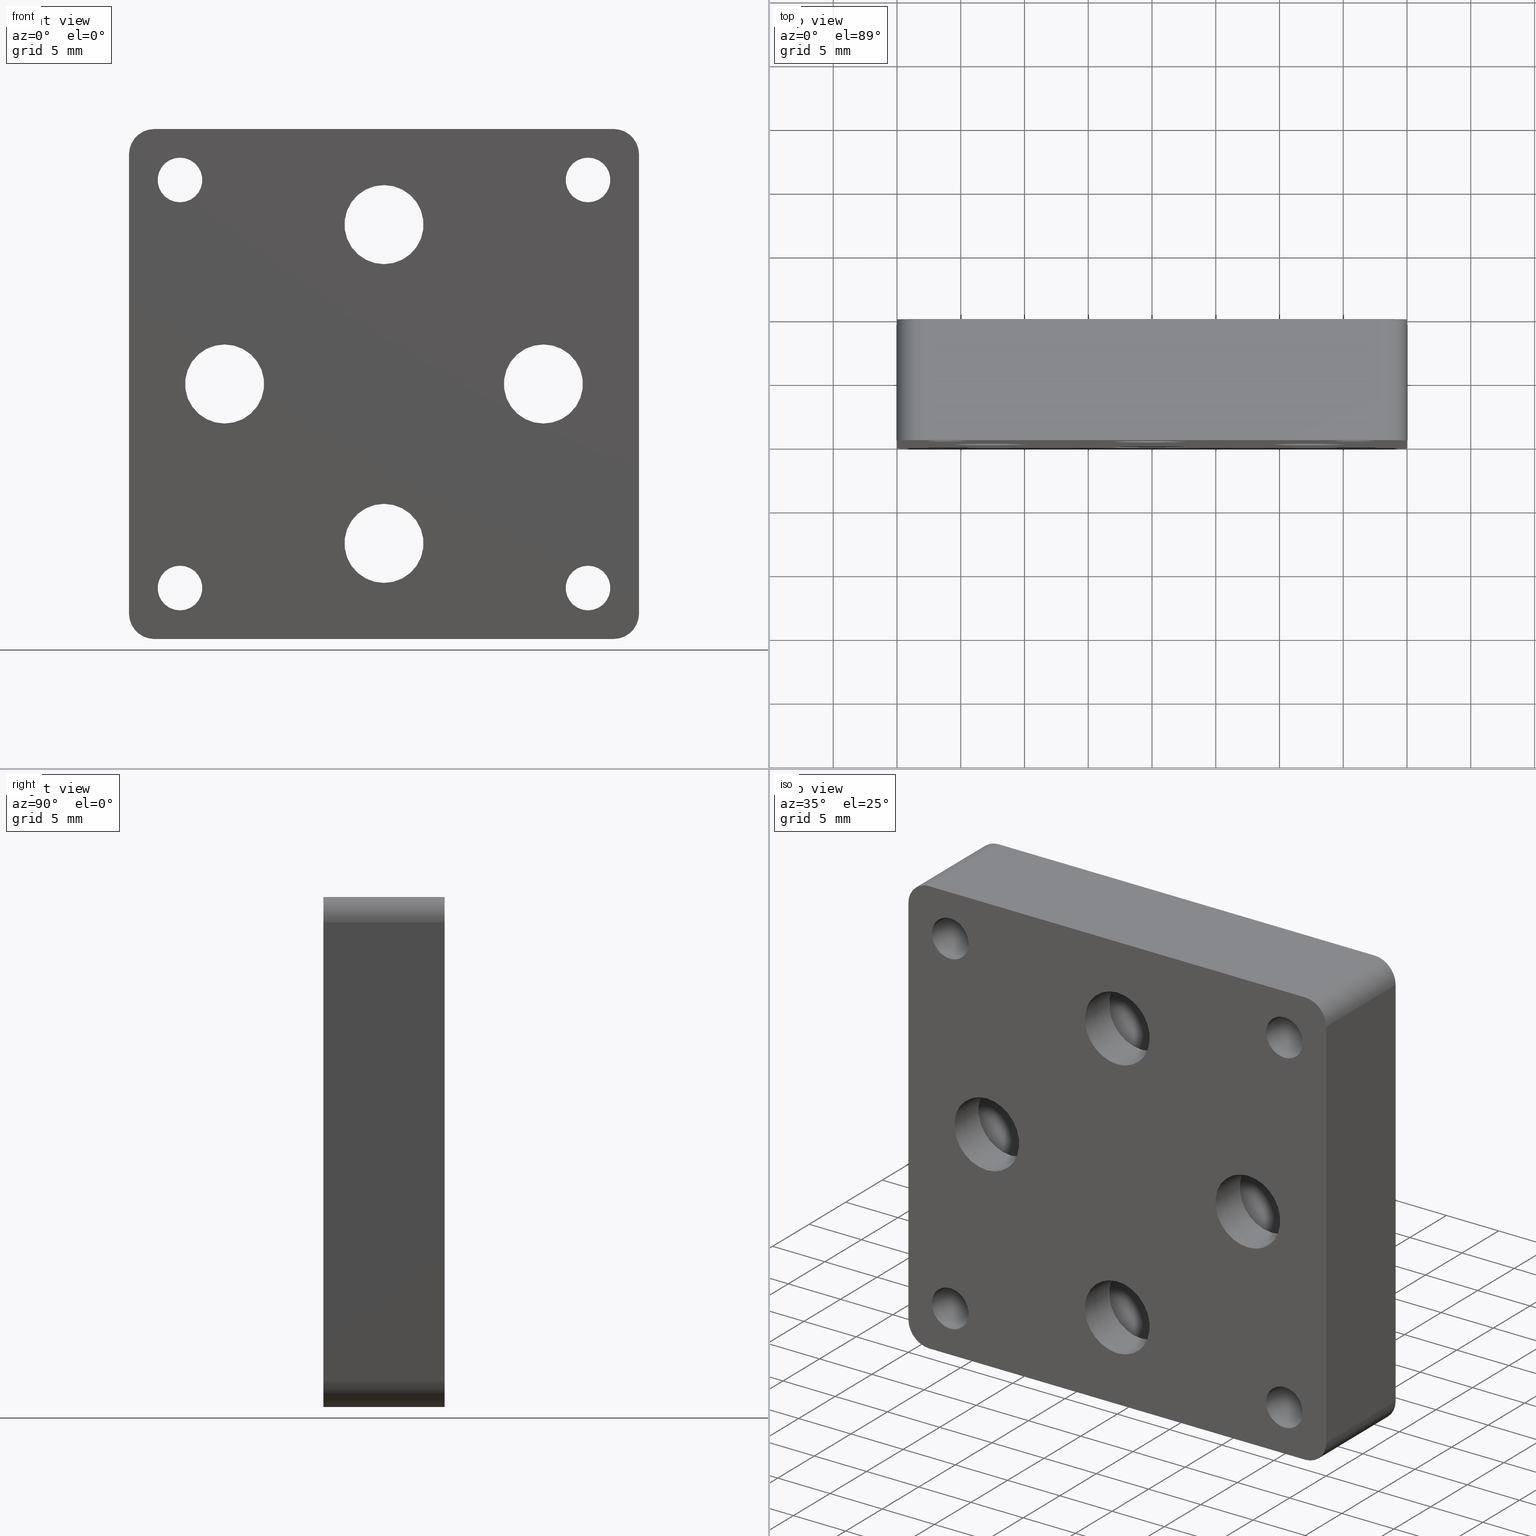
[diagram: canonical four-view strip — front | top / right | iso, engineering-drawing reading convention]
A machine part, canonical four-view strip (front | top / right | iso — engineering-drawing reading convention). The complete STEP part file that produces these views, byte-faithful:
ISO-10303-21;
HEADER;
FILE_DESCRIPTION (( 'STEP AP203' ),
    '1' );
FILE_NAME ('516300ת�Ӱ�.STEP',
    '2022-08-26T09:14:58',
    ( '' ),
    ( '' ),
    'SwSTEP 2.0',
    'SolidWorks 2020',
    '' );
FILE_SCHEMA (( 'CONFIG_CONTROL_DESIGN' ));
ENDSEC;

DATA;
#1 = CARTESIAN_POINT ( 'NONE',  ( -19.99999999999998579, 9.500000000000000000, 18.00000000000000355 ) ) ;
#2 = FACE_BOUND ( 'NONE', #173, .T. ) ;
#3 = CARTESIAN_POINT ( 'NONE',  ( 16.00000000000000000, 0.000000000000000000, -14.25000000000000000 ) ) ;
#4 = EDGE_CURVE ( 'NONE', #119, #119, #726, .T. ) ;
#5 = AXIS2_PLACEMENT_3D ( 'NONE', #140, #394, #321 ) ;
#6 = CARTESIAN_POINT ( 'NONE',  ( -18.00000000000000355, 9.500000000000000000, -19.99999999999998579 ) ) ;
#7 = PLANE ( 'NONE',  #685 ) ;
#8 = AXIS2_PLACEMENT_3D ( 'NONE', #287, #547, #352 ) ;
#9 = VERTEX_POINT ( 'NONE', #383 ) ;
#10 = DIRECTION ( 'NONE',  ( 0.000000000000000000, 1.000000000000000000, 0.000000000000000000 ) ) ;
#11 = DIRECTION ( 'NONE',  ( 0.000000000000000000, -1.000000000000000000, 0.000000000000000000 ) ) ;
#12 =( NAMED_UNIT ( * ) PLANE_ANGLE_UNIT ( ) SI_UNIT ( $, .RADIAN. ) );
#13 = LINE ( 'NONE', #254, #99 ) ;
#14 = ORIENTED_EDGE ( 'NONE', *, *, #250, .T. ) ;
#15 = ADVANCED_FACE ( 'NONE', ( #284, #404 ), #604, .T. ) ;
#16 = CARTESIAN_POINT ( 'NONE',  ( 12.50000000000000178, 9.500000000000000000, -3.061616997868383043E-15 ) ) ;
#17 = APPLICATION_CONTEXT ( 'configuration controlled 3d designs of mechanical parts and assemblies' ) ;
#18 = DATE_AND_TIME ( #633, #425 ) ;
#19 = DIRECTION ( 'NONE',  ( 3.469446951953614682E-16, -0.000000000000000000, 1.000000000000000000 ) ) ;
#20 = EDGE_LOOP ( 'NONE', ( #718 ) ) ;
#21 = AXIS2_PLACEMENT_3D ( 'NONE', #631, #380, #76 ) ;
#22 = DIRECTION ( 'NONE',  ( 0.000000000000000000, -1.000000000000000000, 0.000000000000000000 ) ) ;
#23 = ADVANCED_FACE ( 'NONE', ( #356, #544 ), #229, .T. ) ;
#24 = CARTESIAN_POINT ( 'NONE',  ( 0.000000000000000000, 0.000000000000000000, 0.000000000000000000 ) ) ;
#25 = AXIS2_PLACEMENT_3D ( 'NONE', #557, #748, #488 ) ;
#26 = FACE_BOUND ( 'NONE', #725, .T. ) ;
#27 = CARTESIAN_POINT ( 'NONE',  ( 0.000000000000000000, 3.299999999999999822, -12.50000000000000000 ) ) ;
#28 = DATE_TIME_ROLE ( 'creation_date' ) ;
#29 = DIRECTION ( 'NONE',  ( 0.000000000000000000, 0.000000000000000000, -1.000000000000000000 ) ) ;
#30 = EDGE_LOOP ( 'NONE', ( #732 ) ) ;
#31 = CARTESIAN_POINT ( 'NONE',  ( 12.50000000000000178, 3.299999999999999822, -3.061616997868383043E-15 ) ) ;
#32 = EDGE_CURVE ( 'NONE', #285, #285, #641, .T. ) ;
#33 = DIRECTION ( 'NONE',  ( 0.000000000000000000, 1.000000000000000000, 0.000000000000000000 ) ) ;
#34 = ORIENTED_EDGE ( 'NONE', *, *, #80, .T. ) ;
#35 = DIRECTION ( 'NONE',  ( 0.000000000000000000, 0.000000000000000000, 1.000000000000000000 ) ) ;
#36 = AXIS2_PLACEMENT_3D ( 'NONE', #198, #83, #443 ) ;
#37 = ORIENTED_EDGE ( 'NONE', *, *, #721, .T. ) ;
#38 = AXIS2_PLACEMENT_3D ( 'NONE', #200, #82, #580 ) ;
#39 = EDGE_LOOP ( 'NONE', ( #153 ) ) ;
#40 = DIRECTION ( 'NONE',  ( -0.000000000000000000, 1.000000000000000000, -0.000000000000000000 ) ) ;
#41 = CALENDAR_DATE ( 2022, 26, 8 ) ;
#42 = CYLINDRICAL_SURFACE ( 'NONE', #374, 5.250000000000000000 ) ;
#43 = ORIENTED_EDGE ( 'NONE', *, *, #440, .T. ) ;
#44 = PRODUCT_RELATED_PRODUCT_CATEGORY ( 'detail', '', ( #677 ) ) ;
#45 = CARTESIAN_POINT ( 'NONE',  ( 16.00000000000000000, 9.500000000000000000, -16.00000000000000000 ) ) ;
#46 = ORIENTED_EDGE ( 'NONE', *, *, #778, .T. ) ;
#47 = AXIS2_PLACEMENT_3D ( 'NONE', #271, #644, #781 ) ;
#48 = CIRCLE ( 'NONE', #244, 2.000000000000001776 ) ;
#49 = AXIS2_PLACEMENT_3D ( 'NONE', #341, #256, #270 ) ;
#50 = ORIENTED_EDGE ( 'NONE', *, *, #638, .T. ) ;
#51 = DIRECTION ( 'NONE',  ( 0.000000000000000000, 1.000000000000000000, 0.000000000000000000 ) ) ;
#52 = EDGE_CURVE ( 'NONE', #676, #464, #684, .T. ) ;
#53 = ORIENTED_EDGE ( 'NONE', *, *, #651, .F. ) ;
#54 = DIRECTION ( 'NONE',  ( -0.000000000000000000, 1.000000000000000000, -0.000000000000000000 ) ) ;
#55 = VERTEX_POINT ( 'NONE', #759 ) ;
#56 = EDGE_CURVE ( 'NONE', #55, #645, #48, .T. ) ;
#57 = CARTESIAN_POINT ( 'NONE',  ( -16.00000000000000000, 9.500000000000000000, 16.00000000000000000 ) ) ;
#58 = VERTEX_POINT ( 'NONE', #806 ) ;
#59 = APPROVAL_PERSON_ORGANIZATION ( #593, #769, #788 ) ;
#60 = VECTOR ( 'NONE', #22, 1000.000000000000000 ) ;
#61 = DIRECTION ( 'NONE',  ( 0.000000000000000000, 0.000000000000000000, 1.000000000000000000 ) ) ;
#62 = FACE_BOUND ( 'NONE', #220, .T. ) ;
#63 = VERTEX_POINT ( 'NONE', #445 ) ;
#64 = DIRECTION ( 'NONE',  ( 0.000000000000000000, 0.000000000000000000, -1.000000000000000000 ) ) ;
#65 = CARTESIAN_POINT ( 'NONE',  ( -16.00000000000000000, 9.500000000000000000, -14.25000000000000000 ) ) ;
#66 = DIRECTION ( 'NONE',  ( 0.000000000000000000, 0.000000000000000000, -1.000000000000000000 ) ) ;
#67 = ORIENTED_EDGE ( 'NONE', *, *, #218, .F. ) ;
#68 = DIRECTION ( 'NONE',  ( 0.000000000000000000, -1.000000000000000000, 0.000000000000000000 ) ) ;
#69 = CARTESIAN_POINT ( 'NONE',  ( 0.000000000000000000, 3.299999999999999822, 17.75000000000000355 ) ) ;
#70 = PRODUCT_DEFINITION_FORMATION_WITH_SPECIFIED_SOURCE ( '�κ�', '', #677, .NOT_KNOWN. ) ;
#71 = LINE ( 'NONE', #296, #222 ) ;
#72 = EDGE_LOOP ( 'NONE', ( #793 ) ) ;
#73 = LINE ( 'NONE', #499, #755 ) ;
#74 = VERTEX_POINT ( 'NONE', #69 ) ;
#75 = ADVANCED_FACE ( 'NONE', ( #377 ), #305, .T. ) ;
#76 = DIRECTION ( 'NONE',  ( 0.000000000000000000, 0.000000000000000000, 1.000000000000000000 ) ) ;
#77 = CYLINDRICAL_SURFACE ( 'NONE', #482, 2.000000000000001776 ) ;
#78 = VERTEX_POINT ( 'NONE', #704 ) ;
#79 = FACE_OUTER_BOUND ( 'NONE', #413, .T. ) ;
#80 = EDGE_CURVE ( 'NONE', #333, #459, #550, .T. ) ;
#81 = EDGE_LOOP ( 'NONE', ( #43 ) ) ;
#82 = DIRECTION ( 'NONE',  ( 0.000000000000000000, -1.000000000000000000, 0.000000000000000000 ) ) ;
#83 = DIRECTION ( 'NONE',  ( -0.000000000000000000, 1.000000000000000000, -0.000000000000000000 ) ) ;
#84 = ORIENTED_EDGE ( 'NONE', *, *, #757, .F. ) ;
#85 = LINE ( 'NONE', #516, #160 ) ;
#86 = CIRCLE ( 'NONE', #195, 3.100000000000000533 ) ;
#87 = FACE_OUTER_BOUND ( 'NONE', #525, .T. ) ;
#88 = ORIENTED_EDGE ( 'NONE', *, *, #272, .T. ) ;
#89 = CYLINDRICAL_SURFACE ( 'NONE', #343, 5.249999999999998224 ) ;
#90 = PERSON_AND_ORGANIZATION_ROLE ( 'creator' ) ;
#91 = EDGE_CURVE ( 'NONE', #309, #181, #424, .T. ) ;
#92 = EDGE_LOOP ( 'NONE', ( #157 ) ) ;
#93 = DIRECTION ( 'NONE',  ( -0.000000000000000000, -1.000000000000000000, -0.000000000000000000 ) ) ;
#94 = EDGE_LOOP ( 'NONE', ( #529 ) ) ;
#95 = FACE_BOUND ( 'NONE', #113, .T. ) ;
#96 = DATE_AND_TIME ( #41, #751 ) ;
#97 = CARTESIAN_POINT ( 'NONE',  ( 0.000000000000000000, 3.299999999999999822, -12.50000000000000000 ) ) ;
#98 = CARTESIAN_POINT ( 'NONE',  ( 18.00000000000000711, 9.500000000000000000, 20.00000000000000000 ) ) ;
#99 = VECTOR ( 'NONE', #501, 1000.000000000000000 ) ;
#100 = CIRCLE ( 'NONE', #197, 1.750000000000001554 ) ;
#101 = ORIENTED_EDGE ( 'NONE', *, *, #334, .F. ) ;
#102 = CC_DESIGN_PERSON_AND_ORGANIZATION_ASSIGNMENT ( #700, #138, ( #555 ) ) ;
#103 = VERTEX_POINT ( 'NONE', #746 ) ;
#104 = ORIENTED_EDGE ( 'NONE', *, *, #605, .F. ) ;
#105 = DIRECTION ( 'NONE',  ( 0.000000000000000000, 0.000000000000000000, 1.000000000000000000 ) ) ;
#106 = FACE_OUTER_BOUND ( 'NONE', #298, .T. ) ;
#107 = ORIENTED_EDGE ( 'NONE', *, *, #747, .T. ) ;
#108 = CYLINDRICAL_SURFACE ( 'NONE', #375, 5.250000000000000888 ) ;
#109 = DIRECTION ( 'NONE',  ( 0.000000000000000000, 1.000000000000000000, 0.000000000000000000 ) ) ;
#110 = ADVANCED_FACE ( 'NONE', ( #494, #191 ), #118, .F. ) ;
#111 = ORGANIZATION ( 'δָ��', 'δָ��', '' ) ;
#112 = CIRCLE ( 'NONE', #38, 2.000000000000001776 ) ;
#113 = EDGE_LOOP ( 'NONE', ( #513 ) ) ;
#114 = EDGE_CURVE ( 'NONE', #282, #282, #562, .T. ) ;
#115 = ORIENTED_EDGE ( 'NONE', *, *, #546, .F. ) ;
#116 = ORIENTED_EDGE ( 'NONE', *, *, #114, .F. ) ;
#117 = DIRECTION ( 'NONE',  ( -0.000000000000000000, -1.000000000000000000, -0.000000000000000000 ) ) ;
#118 = CYLINDRICAL_SURFACE ( 'NONE', #627, 1.750000000000001554 ) ;
#119 = VERTEX_POINT ( 'NONE', #363 ) ;
#120 = AXIS2_PLACEMENT_3D ( 'NONE', #239, #156, #717 ) ;
#121 = AXIS2_PLACEMENT_3D ( 'NONE', #295, #51, #293 ) ;
#122 = CIRCLE ( 'NONE', #629, 5.250000000000000888 ) ;
#123 = FACE_OUTER_BOUND ( 'NONE', #355, .T. ) ;
#124 = CC_DESIGN_PERSON_AND_ORGANIZATION_ASSIGNMENT ( #491, #311, ( #677 ) ) ;
#125 = EDGE_LOOP ( 'NONE', ( #406, #385, #541, #659 ) ) ;
#126 = DIRECTION ( 'NONE',  ( -0.000000000000000000, 1.000000000000000000, -0.000000000000000000 ) ) ;
#127 = CARTESIAN_POINT ( 'NONE',  ( -20.00000000000000000, 9.500000000000000000, -17.99999999999998934 ) ) ;
#128 = DIRECTION ( 'NONE',  ( 0.000000000000000000, 0.000000000000000000, 1.000000000000000000 ) ) ;
#129 = DIRECTION ( 'NONE',  ( 0.000000000000000000, 0.000000000000000000, 1.000000000000000000 ) ) ;
#130 = ORIENTED_EDGE ( 'NONE', *, *, #622, .F. ) ;
#131 = DIRECTION ( 'NONE',  ( 0.000000000000000000, 1.000000000000000000, 0.000000000000000000 ) ) ;
#132 = VERTEX_POINT ( 'NONE', #3 ) ;
#133 = ADVANCED_FACE ( 'NONE', ( #618, #2, #561, #754, #421, #242, #620, #437, #182 ), #235, .T. ) ;
#134 = CIRCLE ( 'NONE', #469, 3.100000000000000533 ) ;
#135 = CARTESIAN_POINT ( 'NONE',  ( 16.00000000000000000, 0.000000000000000000, -16.00000000000000000 ) ) ;
#136 = DIRECTION ( 'NONE',  ( 0.000000000000000000, 1.000000000000000000, 0.000000000000000000 ) ) ;
#137 = CIRCLE ( 'NONE', #246, 3.100000000000000533 ) ;
#138 = PERSON_AND_ORGANIZATION_ROLE ( 'creator' ) ;
#139 = EDGE_CURVE ( 'NONE', #459, #502, #73, .T. ) ;
#140 = CARTESIAN_POINT ( 'NONE',  ( -19.99999999999998579, 9.500000000000000000, 20.00000000000000355 ) ) ;
#141 = DIRECTION ( 'NONE',  ( 0.000000000000000000, 1.000000000000000000, 0.000000000000000000 ) ) ;
#142 = DIRECTION ( 'NONE',  ( 0.000000000000000000, 1.000000000000000000, 0.000000000000000000 ) ) ;
#143 = EDGE_LOOP ( 'NONE', ( #37 ) ) ;
#144 = DIRECTION ( 'NONE',  ( 0.000000000000000000, -1.000000000000000000, 0.000000000000000000 ) ) ;
#145 = DIRECTION ( 'NONE',  ( 0.000000000000000000, 0.000000000000000000, -1.000000000000000000 ) ) ;
#146 = ORIENTED_EDGE ( 'NONE', *, *, #169, .T. ) ;
#147 = ADVANCED_FACE ( 'NONE', ( #613 ), #77, .T. ) ;
#148 = DIRECTION ( 'NONE',  ( 0.000000000000000000, -0.000000000000000000, 1.000000000000000000 ) ) ;
#149 = CARTESIAN_POINT ( 'NONE',  ( 0.000000000000000000, 0.000000000000000000, -12.50000000000000000 ) ) ;
#150 = ORIENTED_EDGE ( 'NONE', *, *, #279, .T. ) ;
#151 = DIRECTION ( 'NONE',  ( 3.469446951953614189E-16, -0.000000000000000000, 1.000000000000000000 ) ) ;
#152 = ORIENTED_EDGE ( 'NONE', *, *, #139, .F. ) ;
#153 = ORIENTED_EDGE ( 'NONE', *, *, #457, .F. ) ;
#154 = FACE_OUTER_BOUND ( 'NONE', #294, .T. ) ;
#155 = ADVANCED_FACE ( 'NONE', ( #62, #310 ), #7, .T. ) ;
#156 = DIRECTION ( 'NONE',  ( 0.000000000000000000, -1.000000000000000000, 0.000000000000000000 ) ) ;
#157 = ORIENTED_EDGE ( 'NONE', *, *, #4, .T. ) ;
#158 = LOCAL_TIME ( 17, 14, 58.00000000000000000, #276 ) ;
#159 = ORIENTED_EDGE ( 'NONE', *, *, #297, .T. ) ;
#160 = VECTOR ( 'NONE', #522, 1000.000000000000000 ) ;
#161 = AXIS2_PLACEMENT_3D ( 'NONE', #308, #249, #129 ) ;
#162 = CARTESIAN_POINT ( 'NONE',  ( 0.000000000000000000, 3.299999999999999822, 15.60000000000000142 ) ) ;
#163 = ORIENTED_EDGE ( 'NONE', *, *, #757, .T. ) ;
#164 = DIRECTION ( 'NONE',  ( -1.000000000000000000, -0.000000000000000000, 3.469446951953614189E-16 ) ) ;
#165 = VERTEX_POINT ( 'NONE', #238 ) ;
#166 = FACE_OUTER_BOUND ( 'NONE', #706, .T. ) ;
#167 = EDGE_LOOP ( 'NONE', ( #130 ) ) ;
#168 = EDGE_LOOP ( 'NONE', ( #678, #567, #67, #515 ) ) ;
#169 = EDGE_CURVE ( 'NONE', #722, #722, #768, .T. ) ;
#170 = DIRECTION ( 'NONE',  ( 0.000000000000000000, 1.000000000000000000, 0.000000000000000000 ) ) ;
#171 = AXIS2_PLACEMENT_3D ( 'NONE', #45, #109, #672 ) ;
#172 = AXIS2_PLACEMENT_3D ( 'NONE', #730, #431, #234 ) ;
#173 = EDGE_LOOP ( 'NONE', ( #411 ) ) ;
#174 = DIRECTION ( 'NONE',  ( 0.000000000000000000, -1.000000000000000000, 0.000000000000000000 ) ) ;
#175 = APPROVAL ( #720, 'δָ��' ) ;
#176 = CYLINDRICAL_SURFACE ( 'NONE', #302, 1.750000000000001554 ) ;
#177 = DIRECTION ( 'NONE',  ( 0.000000000000000000, 0.000000000000000000, -1.000000000000000000 ) ) ;
#178 = CIRCLE ( 'NONE', #738, 3.100000000000000533 ) ;
#179 = AXIS2_PLACEMENT_3D ( 'NONE', #458, #462, #274 ) ;
#180 = LINE ( 'NONE', #435, #615 ) ;
#181 = VERTEX_POINT ( 'NONE', #319 ) ;
#182 = FACE_BOUND ( 'NONE', #94, .T. ) ;
#183 = CARTESIAN_POINT ( 'NONE',  ( -12.49999999999999822, 3.299999999999999822, 3.100000000000000533 ) ) ;
#184 = CARTESIAN_POINT ( 'NONE',  ( 18.00000000000000711, 0.000000000000000000, -20.00000000000000000 ) ) ;
#185 = ORIENTED_EDGE ( 'NONE', *, *, #519, .F. ) ;
#186 = ADVANCED_FACE ( 'NONE', ( #749 ), #573, .T. ) ;
#187 = CARTESIAN_POINT ( 'NONE',  ( -19.99999999999998579, 0.000000000000000000, 20.00000000000000355 ) ) ;
#188 = APPROVAL_ROLE ( '' ) ;
#189 = CARTESIAN_POINT ( 'NONE',  ( 20.00000000000000000, 0.000000000000000000, 20.00000000000000000 ) ) ;
#190 = EDGE_LOOP ( 'NONE', ( #210 ) ) ;
#191 = FACE_OUTER_BOUND ( 'NONE', #72, .T. ) ;
#192 = EDGE_CURVE ( 'NONE', #735, #635, #719, .T. ) ;
#193 = CIRCLE ( 'NONE', #120, 2.000000000000001776 ) ;
#194 = CARTESIAN_POINT ( 'NONE',  ( -17.99999999999998934, 9.500000000000000000, 20.00000000000000355 ) ) ;
#195 = AXIS2_PLACEMENT_3D ( 'NONE', #329, #703, #35 ) ;
#196 = DIRECTION ( 'NONE',  ( -0.000000000000000000, 1.000000000000000000, -0.000000000000000000 ) ) ;
#197 = AXIS2_PLACEMENT_3D ( 'NONE', #57, #623, #691 ) ;
#198 = CARTESIAN_POINT ( 'NONE',  ( -18.00000000000000355, 9.500000000000000000, -17.99999999999998934 ) ) ;
#199 = EDGE_LOOP ( 'NONE', ( #470 ) ) ;
#200 = CARTESIAN_POINT ( 'NONE',  ( -17.99999999999998934, 0.000000000000000000, 18.00000000000000355 ) ) ;
#201 = SECURITY_CLASSIFICATION_LEVEL ( 'unclassified' ) ;
#202 = PLANE ( 'NONE',  #5 ) ;
#203 = ORIENTED_EDGE ( 'NONE', *, *, #477, .T. ) ;
#204 = FACE_OUTER_BOUND ( 'NONE', #167, .T. ) ;
#205 = DIRECTION ( 'NONE',  ( 0.000000000000000000, 0.000000000000000000, 1.000000000000000000 ) ) ;
#206 = ORIENTED_EDGE ( 'NONE', *, *, #52, .T. ) ;
#207 = CARTESIAN_POINT ( 'NONE',  ( 18.00000000000000711, 9.500000000000000000, -18.00000000000000355 ) ) ;
#208 = AXIS2_PLACEMENT_3D ( 'NONE', #408, #543, #228 ) ;
#209 = DIRECTION ( 'NONE',  ( -0.000000000000000000, 1.000000000000000000, -0.000000000000000000 ) ) ;
#210 = ORIENTED_EDGE ( 'NONE', *, *, #638, .F. ) ;
#211 = DIRECTION ( 'NONE',  ( 1.000000000000000000, 0.000000000000000000, -3.469446951953614189E-16 ) ) ;
#212 = ADVANCED_FACE ( 'NONE', ( #323 ), #784, .F. ) ;
#213 = ORIENTED_EDGE ( 'NONE', *, *, #4, .F. ) ;
#214 = CARTESIAN_POINT ( 'NONE',  ( 0.000000000000000000, 9.500000000000000000, -12.50000000000000000 ) ) ;
#215 = EDGE_LOOP ( 'NONE', ( #226 ) ) ;
#216 = FACE_OUTER_BOUND ( 'NONE', #39, .T. ) ;
#217 = COORDINATED_UNIVERSAL_TIME_OFFSET ( 8, 0, .AHEAD. ) ;
#218 = EDGE_CURVE ( 'NONE', #645, #493, #779, .T. ) ;
#219 = DIRECTION ( 'NONE',  ( 0.000000000000000000, 1.000000000000000000, 0.000000000000000000 ) ) ;
#220 = EDGE_LOOP ( 'NONE', ( #412 ) ) ;
#221 = VECTOR ( 'NONE', #727, 1000.000000000000000 ) ;
#222 = VECTOR ( 'NONE', #306, 1000.000000000000000 ) ;
#223 = CARTESIAN_POINT ( 'NONE',  ( 16.00000000000000000, 9.500000000000000000, 17.75000000000000355 ) ) ;
#224 = EDGE_LOOP ( 'NONE', ( #84 ) ) ;
#225 = CARTESIAN_POINT ( 'NONE',  ( -16.00000000000000000, 0.000000000000000000, 16.00000000000000000 ) ) ;
#226 = ORIENTED_EDGE ( 'NONE', *, *, #169, .F. ) ;
#227 = EDGE_CURVE ( 'NONE', #645, #309, #85, .T. ) ;
#228 = DIRECTION ( 'NONE',  ( 0.000000000000000000, 0.000000000000000000, 1.000000000000000000 ) ) ;
#229 = PLANE ( 'NONE',  #796 ) ;
#230 = EDGE_LOOP ( 'NONE', ( #241 ) ) ;
#231 = FACE_OUTER_BOUND ( 'NONE', #230, .T. ) ;
#232 = CC_DESIGN_APPROVAL ( #175, ( #441 ) ) ;
#233 = AXIS2_PLACEMENT_3D ( 'NONE', #548, #745, #369 ) ;
#234 = DIRECTION ( 'NONE',  ( 0.000000000000000000, 0.000000000000000000, -1.000000000000000000 ) ) ;
#235 = PLANE ( 'NONE',  #603 ) ;
#236 = EDGE_CURVE ( 'NONE', #181, #493, #337, .T. ) ;
#237 = LINE ( 'NONE', #127, #472 ) ;
#238 = CARTESIAN_POINT ( 'NONE',  ( -20.00000000000000000, 9.500000000000000000, -17.99999999999998934 ) ) ;
#239 = CARTESIAN_POINT ( 'NONE',  ( 18.00000000000000711, 0.000000000000000000, -18.00000000000000355 ) ) ;
#240 = CARTESIAN_POINT ( 'NONE',  ( -18.00000000000000355, 0.000000000000000000, -19.99999999999998579 ) ) ;
#241 = ORIENTED_EDGE ( 'NONE', *, *, #379, .F. ) ;
#242 = FACE_BOUND ( 'NONE', #20, .T. ) ;
#243 = CIRCLE ( 'NONE', #340, 1.999999999999998224 ) ;
#244 = AXIS2_PLACEMENT_3D ( 'NONE', #248, #126, #64 ) ;
#245 = ADVANCED_FACE ( 'NONE', ( #654 ), #396, .F. ) ;
#246 = AXIS2_PLACEMENT_3D ( 'NONE', #773, #449, #707 ) ;
#247 = LINE ( 'NONE', #189, #729 ) ;
#248 = CARTESIAN_POINT ( 'NONE',  ( -17.99999999999998934, 9.500000000000000000, 18.00000000000000355 ) ) ;
#249 = DIRECTION ( 'NONE',  ( 0.000000000000000000, 1.000000000000000000, 0.000000000000000000 ) ) ;
#250 = EDGE_CURVE ( 'NONE', #418, #676, #492, .T. ) ;
#251 = ORIENTED_EDGE ( 'NONE', *, *, #481, .F. ) ;
#252 = CARTESIAN_POINT ( 'NONE',  ( 16.00000000000000000, 9.500000000000000000, -16.00000000000000000 ) ) ;
#253 = PERSON_AND_ORGANIZATION ( #744, #111 ) ;
#254 = CARTESIAN_POINT ( 'NONE',  ( 20.00000000000000000, 9.500000000000000000, -18.00000000000000711 ) ) ;
#255 = ORIENTED_EDGE ( 'NONE', *, *, #279, .F. ) ;
#256 = DIRECTION ( 'NONE',  ( 0.000000000000000000, 1.000000000000000000, 0.000000000000000000 ) ) ;
#257 = DIRECTION ( 'NONE',  ( 0.000000000000000000, 0.000000000000000000, 1.000000000000000000 ) ) ;
#258 = LOCAL_TIME ( 17, 14, 58.00000000000000000, #434 ) ;
#259 = FACE_BOUND ( 'NONE', #667, .T. ) ;
#260 = EDGE_LOOP ( 'NONE', ( #465 ) ) ;
#261 = DIRECTION ( 'NONE',  ( 0.000000000000000000, 0.000000000000000000, 1.000000000000000000 ) ) ;
#262 = CALENDAR_DATE ( 2022, 26, 8 ) ;
#263 = EDGE_CURVE ( 'NONE', #537, #537, #86, .T. ) ;
#264 = APPLICATION_CONTEXT ( 'configuration controlled 3d designs of mechanical parts and assemblies' ) ;
#265 = FACE_BOUND ( 'NONE', #451, .T. ) ;
#266 = DIRECTION ( 'NONE',  ( 1.000000000000000000, 0.000000000000000000, -3.469446951953614682E-16 ) ) ;
#267 = APPROVAL_ROLE ( '' ) ;
#268 = DIRECTION ( 'NONE',  ( -0.000000000000000000, -1.000000000000000000, -0.000000000000000000 ) ) ;
#269 = ORIENTED_EDGE ( 'NONE', *, *, #733, .F. ) ;
#270 = DIRECTION ( 'NONE',  ( 0.000000000000000000, 0.000000000000000000, 1.000000000000000000 ) ) ;
#271 = CARTESIAN_POINT ( 'NONE',  ( 12.50000000000000178, 0.000000000000000000, -3.061616997868383043E-15 ) ) ;
#272 = EDGE_CURVE ( 'NONE', #790, #790, #657, .T. ) ;
#273 = CIRCLE ( 'NONE', #673, 3.100000000000000533 ) ;
#274 = DIRECTION ( 'NONE',  ( 0.000000000000000000, 0.000000000000000000, 1.000000000000000000 ) ) ;
#275 = AXIS2_PLACEMENT_3D ( 'NONE', #687, #553, #420 ) ;
#276 = COORDINATED_UNIVERSAL_TIME_OFFSET ( 8, 0, .AHEAD. ) ;
#277 = LINE ( 'NONE', #422, #480 ) ;
#278 = ORIENTED_EDGE ( 'NONE', *, *, #481, .T. ) ;
#279 = EDGE_CURVE ( 'NONE', #103, #103, #507, .T. ) ;
#280 = DIRECTION ( 'NONE',  ( 0.000000000000000000, 0.000000000000000000, 1.000000000000000000 ) ) ;
#281 = PERSON_AND_ORGANIZATION ( #744, #111 ) ;
#282 = VERTEX_POINT ( 'NONE', #786 ) ;
#283 = ORIENTED_EDGE ( 'NONE', *, *, #795, .F. ) ;
#284 = FACE_BOUND ( 'NONE', #653, .T. ) ;
#285 = VERTEX_POINT ( 'NONE', #598 ) ;
#286 = ORIENTED_EDGE ( 'NONE', *, *, #263, .T. ) ;
#287 = CARTESIAN_POINT ( 'NONE',  ( -12.49999999999999822, 3.299999999999999822, 0.000000000000000000 ) ) ;
#288 = AXIS2_PLACEMENT_3D ( 'NONE', #652, #658, #473 ) ;
#289 = AXIS2_PLACEMENT_3D ( 'NONE', #483, #144, #386 ) ;
#290 = ADVANCED_FACE ( 'NONE', ( #95, #382 ), #714, .T. ) ;
#291 = ORIENTED_EDGE ( 'NONE', *, *, #546, .T. ) ;
#292 = DIRECTION ( 'NONE',  ( 0.000000000000000000, 0.000000000000000000, 1.000000000000000000 ) ) ;
#293 = DIRECTION ( 'NONE',  ( 0.000000000000000000, -0.000000000000000000, 1.000000000000000000 ) ) ;
#294 = EDGE_LOOP ( 'NONE', ( #315 ) ) ;
#295 = CARTESIAN_POINT ( 'NONE',  ( -12.49999999999999822, 3.299999999999999822, 0.000000000000000000 ) ) ;
#296 = CARTESIAN_POINT ( 'NONE',  ( -20.00000000000000000, 0.000000000000000000, -19.99999999999998579 ) ) ;
#297 = EDGE_CURVE ( 'NONE', #309, #327, #112, .T. ) ;
#298 = EDGE_LOOP ( 'NONE', ( #116 ) ) ;
#299 = AXIS2_PLACEMENT_3D ( 'NONE', #214, #219, #552 ) ;
#300 = DIRECTION ( 'NONE',  ( -0.000000000000000000, 1.000000000000000000, -0.000000000000000000 ) ) ;
#301 = AXIS2_PLACEMENT_3D ( 'NONE', #207, #776, #444 ) ;
#302 = AXIS2_PLACEMENT_3D ( 'NONE', #560, #117, #66 ) ;
#303 = FACE_OUTER_BOUND ( 'NONE', #403, .T. ) ;
#304 = ADVANCED_FACE ( 'NONE', ( #204, #154 ), #452, .F. ) ;
#305 = CYLINDRICAL_SURFACE ( 'NONE', #454, 2.000000000000001776 ) ;
#306 = DIRECTION ( 'NONE',  ( -1.000000000000000000, -0.000000000000000000, 3.469446951953614189E-16 ) ) ;
#307 = CARTESIAN_POINT ( 'NONE',  ( -18.00000000000000355, 0.000000000000000000, -17.99999999999998934 ) ) ;
#308 = CARTESIAN_POINT ( 'NONE',  ( 0.000000000000000000, 9.500000000000000000, 12.50000000000000000 ) ) ;
#309 = VERTEX_POINT ( 'NONE', #649 ) ;
#310 = FACE_OUTER_BOUND ( 'NONE', #30, .T. ) ;
#311 = PERSON_AND_ORGANIZATION_ROLE ( 'design_owner' ) ;
#312 = APPROVAL_PERSON_ORGANIZATION ( #253, #530, #188 ) ;
#313 = EDGE_CURVE ( 'NONE', #797, #797, #614, .T. ) ;
#314 = AXIS2_PLACEMENT_3D ( 'NONE', #511, #636, #148 ) ;
#315 = ORIENTED_EDGE ( 'NONE', *, *, #334, .T. ) ;
#316 = DIRECTION ( 'NONE',  ( 0.000000000000000000, 0.000000000000000000, -1.000000000000000000 ) ) ;
#317 = VERTEX_POINT ( 'NONE', #324 ) ;
#318 = DIRECTION ( 'NONE',  ( 0.000000000000000000, -1.000000000000000000, 0.000000000000000000 ) ) ;
#319 = CARTESIAN_POINT ( 'NONE',  ( 18.00000000000000711, 0.000000000000000000, 20.00000000000000000 ) ) ;
#320 =( LENGTH_UNIT ( ) NAMED_UNIT ( * ) SI_UNIT ( .MILLI., .METRE. ) );
#321 = DIRECTION ( 'NONE',  ( -1.000000000000000000, 0.000000000000000000, 8.673617379884039170E-17 ) ) ;
#322 = CC_DESIGN_PERSON_AND_ORGANIZATION_ASSIGNMENT ( #466, #397, ( #70 ) ) ;
#323 = FACE_OUTER_BOUND ( 'NONE', #600, .T. ) ;
#324 = CARTESIAN_POINT ( 'NONE',  ( -12.49999999999999822, 9.500000000000000000, 5.250000000000000000 ) ) ;
#325 = CIRCLE ( 'NONE', #288, 1.999999999999998224 ) ;
#326 = FACE_BOUND ( 'NONE', #224, .T. ) ;
#327 = VERTEX_POINT ( 'NONE', #503 ) ;
#328 = AXIS2_PLACEMENT_3D ( 'NONE', #588, #266, #527 ) ;
#329 = CARTESIAN_POINT ( 'NONE',  ( 0.000000000000000000, 3.299999999999999822, 12.50000000000000000 ) ) ;
#330 = FACE_OUTER_BOUND ( 'NONE', #215, .T. ) ;
#331 = EDGE_LOOP ( 'NONE', ( #50 ) ) ;
#332 = DIRECTION ( 'NONE',  ( 1.000000000000000000, 0.000000000000000000, -8.673617379884037937E-17 ) ) ;
#333 = VERTEX_POINT ( 'NONE', #767 ) ;
#334 = EDGE_CURVE ( 'NONE', #410, #410, #137, .T. ) ;
#335 = FACE_BOUND ( 'NONE', #775, .T. ) ;
#336 = ORIENTED_EDGE ( 'NONE', *, *, #379, .T. ) ;
#337 = LINE ( 'NONE', #98, #592 ) ;
#338 = CARTESIAN_POINT ( 'NONE',  ( -19.99999999999998579, 9.500000000000000000, 20.00000000000000355 ) ) ;
#339 = ORIENTED_EDGE ( 'NONE', *, *, #236, .F. ) ;
#340 = AXIS2_PLACEMENT_3D ( 'NONE', #450, #209, #771 ) ;
#341 = CARTESIAN_POINT ( 'NONE',  ( 16.00000000000000000, 9.500000000000000000, 16.00000000000000000 ) ) ;
#342 = VECTOR ( 'NONE', #489, 1000.000000000000000 ) ;
#343 = AXIS2_PLACEMENT_3D ( 'NONE', #31, #40, #670 ) ;
#344 = DIRECTION ( 'NONE',  ( 0.000000000000000000, 0.000000000000000000, 1.000000000000000000 ) ) ;
#345 = ORIENTED_EDGE ( 'NONE', *, *, #446, .F. ) ;
#346 = ORIENTED_EDGE ( 'NONE', *, *, #56, .T. ) ;
#347 = APPROVAL_STATUS ( 'not_yet_approved' ) ;
#348 = ORIENTED_EDGE ( 'NONE', *, *, #313, .F. ) ;
#349 = CC_DESIGN_PERSON_AND_ORGANIZATION_ASSIGNMENT ( #663, #512, ( #441 ) ) ;
#350 = ORIENTED_EDGE ( 'NONE', *, *, #467, .F. ) ;
#351 = EDGE_LOOP ( 'NONE', ( #782 ) ) ;
#352 = DIRECTION ( 'NONE',  ( 0.000000000000000000, 0.000000000000000000, 1.000000000000000000 ) ) ;
#353 = CC_DESIGN_SECURITY_CLASSIFICATION ( #441, ( #70 ) ) ;
#354 = AXIS2_PLACEMENT_3D ( 'NONE', #307, #174, #177 ) ;
#355 = EDGE_LOOP ( 'NONE', ( #88 ) ) ;
#356 = FACE_BOUND ( 'NONE', #518, .T. ) ;
#357 = ADVANCED_FACE ( 'NONE', ( #584, #646 ), #89, .F. ) ;
#358 = CARTESIAN_POINT ( 'NONE',  ( 0.000000000000000000, 9.500000000000000000, -12.50000000000000000 ) ) ;
#359 = ADVANCED_FACE ( 'NONE', ( #216, #166 ), #108, .F. ) ;
#360 = DIRECTION ( 'NONE',  ( 0.000000000000000000, 0.000000000000000000, -1.000000000000000000 ) ) ;
#361 = CARTESIAN_POINT ( 'NONE',  ( 0.000000000000000000, 3.299999999999999822, -12.50000000000000000 ) ) ;
#362 = AXIS2_PLACEMENT_3D ( 'NONE', #135, #142, #570 ) ;
#363 = CARTESIAN_POINT ( 'NONE',  ( 16.00000000000000000, 9.500000000000000000, -14.25000000000000000 ) ) ;
#364 = CIRCLE ( 'NONE', #8, 5.250000000000000000 ) ;
#365 = CYLINDRICAL_SURFACE ( 'NONE', #609, 3.100000000000000533 ) ;
#366 = DIRECTION ( 'NONE',  ( 0.000000000000000000, 0.000000000000000000, -1.000000000000000000 ) ) ;
#367 = APPLICATION_PROTOCOL_DEFINITION ( 'international standard', 'config_control_design', 1994, #17 ) ;
#368 = CARTESIAN_POINT ( 'NONE',  ( 12.50000000000000178, 3.299999999999999822, -3.061616997868383043E-15 ) ) ;
#369 = DIRECTION ( 'NONE',  ( 0.000000000000000000, 0.000000000000000000, 1.000000000000000000 ) ) ;
#370 = EDGE_CURVE ( 'NONE', #668, #668, #711, .T. ) ;
#371 = FACE_OUTER_BOUND ( 'NONE', #395, .T. ) ;
#372 = DIRECTION ( 'NONE',  ( 0.000000000000000000, 0.000000000000000000, 1.000000000000000000 ) ) ;
#373 = VERTEX_POINT ( 'NONE', #750 ) ;
#374 = AXIS2_PLACEMENT_3D ( 'NONE', #97, #300, #809 ) ;
#375 = AXIS2_PLACEMENT_3D ( 'NONE', #414, #607, #105 ) ;
#376 = CYLINDRICAL_SURFACE ( 'NONE', #387, 1.749999999999999778 ) ;
#377 = FACE_OUTER_BOUND ( 'NONE', #125, .T. ) ;
#378 = COORDINATED_UNIVERSAL_TIME_OFFSET ( 8, 0, .AHEAD. ) ;
#379 = EDGE_CURVE ( 'NONE', #58, #58, #364, .T. ) ;
#380 = DIRECTION ( 'NONE',  ( 0.000000000000000000, 1.000000000000000000, 0.000000000000000000 ) ) ;
#381 = ORIENTED_EDGE ( 'NONE', *, *, #671, .T. ) ;
#382 = FACE_OUTER_BOUND ( 'NONE', #475, .T. ) ;
#383 = CARTESIAN_POINT ( 'NONE',  ( 0.000000000000000000, 0.000000000000000000, -9.400000000000000355 ) ) ;
#384 = DIRECTION ( 'NONE',  ( -0.000000000000000000, -1.000000000000000000, -0.000000000000000000 ) ) ;
#385 = ORIENTED_EDGE ( 'NONE', *, *, #671, .F. ) ;
#386 = DIRECTION ( 'NONE',  ( 0.000000000000000000, 0.000000000000000000, -1.000000000000000000 ) ) ;
#387 = AXIS2_PLACEMENT_3D ( 'NONE', #705, #93, #637 ) ;
#388 = VECTOR ( 'NONE', #11, 1000.000000000000000 ) ;
#389 = CARTESIAN_POINT ( 'NONE',  ( 0.000000000000000000, 0.000000000000000000, 12.50000000000000000 ) ) ;
#390 = EDGE_LOOP ( 'NONE', ( #542, #381, #115, #590 ) ) ;
#391 = AXIS2_PLACEMENT_3D ( 'NONE', #392, #151, #211 ) ;
#392 = CARTESIAN_POINT ( 'NONE',  ( -20.00000000000000000, 9.500000000000000000, -19.99999999999998579 ) ) ;
#393 = DATE_TIME_ROLE ( 'classification_date' ) ;
#394 = DIRECTION ( 'NONE',  ( -8.673617379884039170E-17, 0.000000000000000000, -1.000000000000000000 ) ) ;
#395 = EDGE_LOOP ( 'NONE', ( #53, #339, #716, #758 ) ) ;
#396 = PLANE ( 'NONE',  #328 ) ;
#397 = PERSON_AND_ORGANIZATION_ROLE ( 'design_supplier' ) ;
#398 = EDGE_CURVE ( 'NONE', #63, #63, #741, .T. ) ;
#399 = CARTESIAN_POINT ( 'NONE',  ( 20.00000000000000000, 9.500000000000000000, 20.00000000000000000 ) ) ;
#400 = DIRECTION ( 'NONE',  ( 0.000000000000000000, 0.000000000000000000, -1.000000000000000000 ) ) ;
#401 = APPROVAL_DATE_TIME ( #517, #769 ) ;
#402 =( GEOMETRIC_REPRESENTATION_CONTEXT ( 3 ) GLOBAL_UNCERTAINTY_ASSIGNED_CONTEXT ( ( #536 ) ) GLOBAL_UNIT_ASSIGNED_CONTEXT ( ( #320, #12, #506 ) ) REPRESENTATION_CONTEXT ( 'NONE', 'WORKASPACE' ) );
#403 = EDGE_LOOP ( 'NONE', ( #255 ) ) ;
#404 = FACE_OUTER_BOUND ( 'NONE', #432, .T. ) ;
#405 = CARTESIAN_POINT ( 'NONE',  ( 0.000000000000000000, 3.299999999999999822, -9.400000000000000355 ) ) ;
#406 = ORIENTED_EDGE ( 'NONE', *, *, #250, .F. ) ;
#407 = CC_DESIGN_DATE_AND_TIME_ASSIGNMENT ( #785, #393, ( #441 ) ) ;
#408 = CARTESIAN_POINT ( 'NONE',  ( 12.50000000000000178, 9.500000000000000000, -3.061616997868383043E-15 ) ) ;
#409 = MANIFOLD_SOLID_BREP ( '�г�-����1', #612 ) ;
#410 = VERTEX_POINT ( 'NONE', #616 ) ;
#411 = ORIENTED_EDGE ( 'NONE', *, *, #370, .T. ) ;
#412 = ORIENTED_EDGE ( 'NONE', *, *, #263, .F. ) ;
#413 = EDGE_LOOP ( 'NONE', ( #286 ) ) ;
#414 = CARTESIAN_POINT ( 'NONE',  ( 0.000000000000000000, 3.299999999999999822, 12.50000000000000000 ) ) ;
#415 = VECTOR ( 'NONE', #19, 1000.000000000000000 ) ;
#416 = DIRECTION ( 'NONE',  ( 0.000000000000000000, -0.000000000000000000, 1.000000000000000000 ) ) ;
#417 = ADVANCED_FACE ( 'NONE', ( #231, #476 ), #736, .F. ) ;
#418 = VERTEX_POINT ( 'NONE', #479 ) ;
#419 = ADVANCED_FACE ( 'NONE', ( #740, #792 ), #471, .F. ) ;
#420 = DIRECTION ( 'NONE',  ( 0.000000000000000000, 0.000000000000000000, 1.000000000000000000 ) ) ;
#421 = FACE_OUTER_BOUND ( 'NONE', #669, .T. ) ;
#422 = CARTESIAN_POINT ( 'NONE',  ( -20.00000000000000000, 9.500000000000000000, -19.99999999999998579 ) ) ;
#423 = CYLINDRICAL_SURFACE ( 'NONE', #25, 3.100000000000000533 ) ;
#424 = LINE ( 'NONE', #187, #342 ) ;
#425 = LOCAL_TIME ( 17, 14, 58.00000000000000000, #378 ) ;
#426 = MECHANICAL_CONTEXT ( 'NONE', #17, 'mechanical' ) ;
#427 = FACE_OUTER_BOUND ( 'NONE', #81, .T. ) ;
#428 = CC_DESIGN_DATE_AND_TIME_ASSIGNMENT ( #18, #28, ( #555 ) ) ;
#429 = CARTESIAN_POINT ( 'NONE',  ( 0.000000000000000000, 0.000000000000000000, 0.000000000000000000 ) ) ;
#430 = CARTESIAN_POINT ( 'NONE',  ( -16.00000000000000000, 9.500000000000000000, 17.75000000000000355 ) ) ;
#431 = DIRECTION ( 'NONE',  ( -0.000000000000000000, -1.000000000000000000, -0.000000000000000000 ) ) ;
#432 = EDGE_LOOP ( 'NONE', ( #336 ) ) ;
#433 = DIRECTION ( 'NONE',  ( 0.000000000000000000, -0.000000000000000000, 1.000000000000000000 ) ) ;
#434 = COORDINATED_UNIVERSAL_TIME_OFFSET ( 8, 0, .AHEAD. ) ;
#435 = CARTESIAN_POINT ( 'NONE',  ( 20.00000000000000000, 9.500000000000000000, 20.00000000000000000 ) ) ;
#436 = ORIENTED_EDGE ( 'NONE', *, *, #477, .F. ) ;
#437 = FACE_BOUND ( 'NONE', #143, .T. ) ;
#438 = CIRCLE ( 'NONE', #21, 5.250000000000000000 ) ;
#439 = APPLICATION_PROTOCOL_DEFINITION ( 'international standard', 'config_control_design', 1994, #264 ) ;
#440 = EDGE_CURVE ( 'NONE', #628, #628, #804, .T. ) ;
#441 = SECURITY_CLASSIFICATION ( '', '', #201 ) ;
#442 = AXIS2_PLACEMENT_3D ( 'NONE', #485, #131, #372 ) ;
#443 = DIRECTION ( 'NONE',  ( 0.000000000000000000, 0.000000000000000000, -1.000000000000000000 ) ) ;
#444 = DIRECTION ( 'NONE',  ( 0.000000000000000000, 0.000000000000000000, -1.000000000000000000 ) ) ;
#445 = CARTESIAN_POINT ( 'NONE',  ( 12.50000000000000178, 9.500000000000000000, 5.249999999999995559 ) ) ;
#446 = EDGE_CURVE ( 'NONE', #327, #55, #680, .T. ) ;
#447 = FACE_BOUND ( 'NONE', #624, .T. ) ;
#448 = EDGE_LOOP ( 'NONE', ( #203 ) ) ;
#449 = DIRECTION ( 'NONE',  ( 0.000000000000000000, 1.000000000000000000, 0.000000000000000000 ) ) ;
#450 = CARTESIAN_POINT ( 'NONE',  ( 18.00000000000000355, 9.500000000000000000, 18.00000000000000000 ) ) ;
#451 = EDGE_LOOP ( 'NONE', ( #762 ) ) ;
#452 = CYLINDRICAL_SURFACE ( 'NONE', #564, 3.100000000000000533 ) ;
#453 = SHAPE_DEFINITION_REPRESENTATION ( #731, #534 ) ;
#454 = AXIS2_PLACEMENT_3D ( 'NONE', #554, #558, #625 ) ;
#455 = PLANE ( 'NONE',  #802 ) ;
#456 = ORIENTED_EDGE ( 'NONE', *, *, #398, .T. ) ;
#457 = EDGE_CURVE ( 'NONE', #74, #74, #122, .T. ) ;
#458 = CARTESIAN_POINT ( 'NONE',  ( -12.49999999999999822, 0.000000000000000000, 0.000000000000000000 ) ) ;
#459 = VERTEX_POINT ( 'NONE', #240 ) ;
#460 = CARTESIAN_POINT ( 'NONE',  ( 20.00000000000000000, 0.000000000000000000, 18.00000000000000000 ) ) ;
#461 = ORIENTED_EDGE ( 'NONE', *, *, #795, .T. ) ;
#462 = DIRECTION ( 'NONE',  ( 0.000000000000000000, 1.000000000000000000, 0.000000000000000000 ) ) ;
#463 = DIRECTION ( 'NONE',  ( -1.000000000000000000, 0.000000000000000000, 0.000000000000000000 ) ) ;
#464 = VERTEX_POINT ( 'NONE', #184 ) ;
#465 = ORIENTED_EDGE ( 'NONE', *, *, #721, .F. ) ;
#466 = PERSON_AND_ORGANIZATION ( #744, #111 ) ;
#467 = EDGE_CURVE ( 'NONE', #686, #686, #100, .T. ) ;
#468 = PLANE ( 'NONE',  #682 ) ;
#469 = AXIS2_PLACEMENT_3D ( 'NONE', #149, #33, #205 ) ;
#470 = ORIENTED_EDGE ( 'NONE', *, *, #498, .F. ) ;
#471 = CYLINDRICAL_SURFACE ( 'NONE', #172, 1.749999999999999778 ) ;
#472 = VECTOR ( 'NONE', #756, 1000.000000000000000 ) ;
#473 = DIRECTION ( 'NONE',  ( 0.000000000000000000, 0.000000000000000000, -1.000000000000000000 ) ) ;
#474 = VERTEX_POINT ( 'NONE', #610 ) ;
#475 = EDGE_LOOP ( 'NONE', ( #539 ) ) ;
#476 = FACE_OUTER_BOUND ( 'NONE', #331, .T. ) ;
#477 = EDGE_CURVE ( 'NONE', #563, #563, #660, .T. ) ;
#478 = ORIENTED_EDGE ( 'NONE', *, *, #733, .T. ) ;
#479 = CARTESIAN_POINT ( 'NONE',  ( 20.00000000000000000, 9.500000000000000000, -18.00000000000000711 ) ) ;
#480 = VECTOR ( 'NONE', #164, 1000.000000000000000 ) ;
#481 = EDGE_CURVE ( 'NONE', #464, #459, #71, .T. ) ;
#482 = AXIS2_PLACEMENT_3D ( 'NONE', #693, #808, #316 ) ;
#483 = CARTESIAN_POINT ( 'NONE',  ( -17.99999999999998934, 9.500000000000000000, 18.00000000000000355 ) ) ;
#484 = FACE_OUTER_BOUND ( 'NONE', #662, .T. ) ;
#485 = CARTESIAN_POINT ( 'NONE',  ( 16.00000000000000000, 0.000000000000000000, 16.00000000000000000 ) ) ;
#486 = VERTEX_POINT ( 'NONE', #621 ) ;
#487 = ADVANCED_FACE ( 'NONE', ( #427, #549 ), #176, .F. ) ;
#488 = DIRECTION ( 'NONE',  ( 0.000000000000000000, 0.000000000000000000, -1.000000000000000000 ) ) ;
#489 = DIRECTION ( 'NONE',  ( 1.000000000000000000, 0.000000000000000000, -8.673617379884037937E-17 ) ) ;
#490 = CIRCLE ( 'NONE', #47, 3.100000000000000533 ) ;
#491 = PERSON_AND_ORGANIZATION ( #744, #111 ) ;
#492 = CIRCLE ( 'NONE', #301, 2.000000000000001776 ) ;
#493 = VERTEX_POINT ( 'NONE', #807 ) ;
#494 = FACE_OUTER_BOUND ( 'NONE', #92, .T. ) ;
#495 = CARTESIAN_POINT ( 'NONE',  ( 0.000000000000000000, 0.000000000000000000, 9.400000000000000355 ) ) ;
#496 = DIRECTION ( 'NONE',  ( 0.000000000000000000, 0.000000000000000000, -1.000000000000000000 ) ) ;
#497 = ORIENTED_EDGE ( 'NONE', *, *, #56, .F. ) ;
#498 = EDGE_CURVE ( 'NONE', #486, #486, #770, .T. ) ;
#499 = CARTESIAN_POINT ( 'NONE',  ( -18.00000000000000355, 9.500000000000000000, -19.99999999999998579 ) ) ;
#500 = APPROVAL_DATE_TIME ( #574, #530 ) ;
#501 = DIRECTION ( 'NONE',  ( -0.000000000000000000, 1.000000000000000000, -0.000000000000000000 ) ) ;
#502 = VERTEX_POINT ( 'NONE', #6 ) ;
#503 = CARTESIAN_POINT ( 'NONE',  ( -19.99999999999998579, 0.000000000000000000, 18.00000000000000355 ) ) ;
#504 = EDGE_CURVE ( 'NONE', #635, #474, #247, .T. ) ;
#505 = CIRCLE ( 'NONE', #299, 5.250000000000000000 ) ;
#506 =( NAMED_UNIT ( * ) SI_UNIT ( $, .STERADIAN. ) SOLID_ANGLE_UNIT ( ) );
#507 = CIRCLE ( 'NONE', #179, 3.100000000000000533 ) ;
#508 = AXIS2_PLACEMENT_3D ( 'NONE', #803, #761, #496 ) ;
#509 = LINE ( 'NONE', #702, #415 ) ;
#510 = ORIENTED_EDGE ( 'NONE', *, *, #446, .T. ) ;
#511 = CARTESIAN_POINT ( 'NONE',  ( 0.000000000000000000, 3.299999999999999822, -12.50000000000000000 ) ) ;
#512 = PERSON_AND_ORGANIZATION_ROLE ( 'classification_officer' ) ;
#513 = ORIENTED_EDGE ( 'NONE', *, *, #272, .F. ) ;
#514 = CARTESIAN_POINT ( 'NONE',  ( 0.000000000000000000, 9.500000000000000000, 0.000000000000000000 ) ) ;
#515 = ORIENTED_EDGE ( 'NONE', *, *, #227, .T. ) ;
#516 = CARTESIAN_POINT ( 'NONE',  ( -17.99999999999998934, 9.500000000000000000, 20.00000000000000355 ) ) ;
#517 = DATE_AND_TIME ( #650, #538 ) ;
#518 = EDGE_LOOP ( 'NONE', ( #101 ) ) ;
#519 = EDGE_CURVE ( 'NONE', #165, #333, #237, .T. ) ;
#520 = DIRECTION ( 'NONE',  ( 0.000000000000000000, 0.000000000000000000, -1.000000000000000000 ) ) ;
#521 = EDGE_LOOP ( 'NONE', ( #456 ) ) ;
#522 = DIRECTION ( 'NONE',  ( 0.000000000000000000, -1.000000000000000000, 0.000000000000000000 ) ) ;
#523 = APPROVAL_DATE_TIME ( #96, #175 ) ;
#524 = FACE_BOUND ( 'NONE', #199, .T. ) ;
#525 = EDGE_LOOP ( 'NONE', ( #291, #14, #107, #799, #461, #346, #791, #594 ) ) ;
#526 = VECTOR ( 'NONE', #566, 1000.000000000000000 ) ;
#527 = DIRECTION ( 'NONE',  ( -3.469446951953614682E-16, 0.000000000000000000, -1.000000000000000000 ) ) ;
#528 = FACE_OUTER_BOUND ( 'NONE', #390, .T. ) ;
#529 = ORIENTED_EDGE ( 'NONE', *, *, #694, .T. ) ;
#530 = APPROVAL ( #760, 'δָ��' ) ;
#531 = PERSON_AND_ORGANIZATION ( #744, #111 ) ;
#532 = CARTESIAN_POINT ( 'NONE',  ( 16.00000000000000000, 0.000000000000000000, 17.75000000000000355 ) ) ;
#533 = EDGE_LOOP ( 'NONE', ( #739 ) ) ;
#534 = ADVANCED_BREP_SHAPE_REPRESENTATION ( '516300ת�Ӱ�', ( #409, #794 ), #402 ) ;
#535 = ORIENTED_EDGE ( 'NONE', *, *, #694, .F. ) ;
#536 = UNCERTAINTY_MEASURE_WITH_UNIT (LENGTH_MEASURE( 1.000000000000000082E-05 ), #320, 'distance_accuracy_value', 'NONE');
#537 = VERTEX_POINT ( 'NONE', #162 ) ;
#538 = LOCAL_TIME ( 17, 14, 58.00000000000000000, #217 ) ;
#539 = ORIENTED_EDGE ( 'NONE', *, *, #114, .T. ) ;
#540 = AXIS2_PLACEMENT_3D ( 'NONE', #27, #141, #261 ) ;
#541 = ORIENTED_EDGE ( 'NONE', *, *, #783, .F. ) ;
#542 = ORIENTED_EDGE ( 'NONE', *, *, #504, .T. ) ;
#543 = DIRECTION ( 'NONE',  ( 0.000000000000000000, 1.000000000000000000, 0.000000000000000000 ) ) ;
#544 = FACE_OUTER_BOUND ( 'NONE', #448, .T. ) ;
#545 = ORIENTED_EDGE ( 'NONE', *, *, #139, .T. ) ;
#546 = EDGE_CURVE ( 'NONE', #735, #418, #180, .T. ) ;
#547 = DIRECTION ( 'NONE',  ( 0.000000000000000000, 1.000000000000000000, 0.000000000000000000 ) ) ;
#548 = CARTESIAN_POINT ( 'NONE',  ( -16.00000000000000000, 0.000000000000000000, -16.00000000000000000 ) ) ;
#549 = FACE_OUTER_BOUND ( 'NONE', #576, .T. ) ;
#550 = CIRCLE ( 'NONE', #354, 2.000000000000001776 ) ;
#551 = VECTOR ( 'NONE', #332, 1000.000000000000000 ) ;
#552 = DIRECTION ( 'NONE',  ( 0.000000000000000000, 0.000000000000000000, 1.000000000000000000 ) ) ;
#553 = DIRECTION ( 'NONE',  ( 0.000000000000000000, 1.000000000000000000, 0.000000000000000000 ) ) ;
#554 = CARTESIAN_POINT ( 'NONE',  ( 18.00000000000000711, 9.500000000000000000, -18.00000000000000355 ) ) ;
#555 = PRODUCT_DEFINITION ( 'δ֪', '', #70, #585 ) ;
#556 = CARTESIAN_POINT ( 'NONE',  ( 20.00000000000000000, 9.500000000000000000, 18.00000000000000000 ) ) ;
#557 = CARTESIAN_POINT ( 'NONE',  ( -12.49999999999999822, 9.500000000000000000, 0.000000000000000000 ) ) ;
#558 = DIRECTION ( 'NONE',  ( 0.000000000000000000, -1.000000000000000000, 0.000000000000000000 ) ) ;
#559 = CARTESIAN_POINT ( 'NONE',  ( 12.50000000000000178, 3.299999999999999822, 5.249999999999995559 ) ) ;
#560 = CARTESIAN_POINT ( 'NONE',  ( -16.00000000000000000, 9.500000000000000000, -16.00000000000000000 ) ) ;
#561 = FACE_BOUND ( 'NONE', #351, .T. ) ;
#562 = CIRCLE ( 'NONE', #643, 5.250000000000000000 ) ;
#563 = VERTEX_POINT ( 'NONE', #559 ) ;
#564 = AXIS2_PLACEMENT_3D ( 'NONE', #16, #709, #400 ) ;
#565 = ADVANCED_FACE ( 'NONE', ( #303, #484 ), #423, .F. ) ;
#566 = DIRECTION ( 'NONE',  ( -0.000000000000000000, 1.000000000000000000, -0.000000000000000000 ) ) ;
#567 = ORIENTED_EDGE ( 'NONE', *, *, #236, .T. ) ;
#568 = CARTESIAN_POINT ( 'NONE',  ( 18.00000000000000711, 9.500000000000000000, -20.00000000000000000 ) ) ;
#569 = VERTEX_POINT ( 'NONE', #183 ) ;
#570 = DIRECTION ( 'NONE',  ( 0.000000000000000000, 0.000000000000000000, 1.000000000000000000 ) ) ;
#571 = ADVANCED_FACE ( 'NONE', ( #371 ), #683, .T. ) ;
#572 = ORIENTED_EDGE ( 'NONE', *, *, #80, .F. ) ;
#573 = CYLINDRICAL_SURFACE ( 'NONE', #289, 2.000000000000001776 ) ;
#574 = DATE_AND_TIME ( #695, #258 ) ;
#575 = FACE_OUTER_BOUND ( 'NONE', #728, .T. ) ;
#576 = EDGE_LOOP ( 'NONE', ( #692 ) ) ;
#577 = CARTESIAN_POINT ( 'NONE',  ( 20.00000000000000000, 9.500000000000000000, 18.00000000000000000 ) ) ;
#578 = AXIS2_PLACEMENT_3D ( 'NONE', #368, #743, #619 ) ;
#579 = FACE_BOUND ( 'NONE', #190, .T. ) ;
#580 = DIRECTION ( 'NONE',  ( 0.000000000000000000, 0.000000000000000000, -1.000000000000000000 ) ) ;
#581 = ADVANCED_FACE ( 'NONE', ( #752, #123 ), #365, .F. ) ;
#582 = FACE_OUTER_BOUND ( 'NONE', #168, .T. ) ;
#583 = EDGE_LOOP ( 'NONE', ( #146 ) ) ;
#584 = FACE_OUTER_BOUND ( 'NONE', #766, .T. ) ;
#585 = DESIGN_CONTEXT ( 'detailed design', #264, 'design' ) ;
#586 = CARTESIAN_POINT ( 'NONE',  ( 0.000000000000000000, 9.500000000000000000, 12.50000000000000000 ) ) ;
#587 = ORIENTED_EDGE ( 'NONE', *, *, #783, .T. ) ;
#588 = CARTESIAN_POINT ( 'NONE',  ( -19.99999999999998579, 9.500000000000000000, 20.00000000000000355 ) ) ;
#589 = DIRECTION ( 'NONE',  ( 0.000000000000000000, 0.000000000000000000, 1.000000000000000000 ) ) ;
#590 = ORIENTED_EDGE ( 'NONE', *, *, #192, .T. ) ;
#591 = EDGE_CURVE ( 'NONE', #132, #132, #724, .T. ) ;
#592 = VECTOR ( 'NONE', #196, 1000.000000000000000 ) ;
#593 = PERSON_AND_ORGANIZATION ( #744, #111 ) ;
#594 = ORIENTED_EDGE ( 'NONE', *, *, #651, .T. ) ;
#595 = FACE_OUTER_BOUND ( 'NONE', #753, .T. ) ;
#596 = ORIENTED_EDGE ( 'NONE', *, *, #630, .T. ) ;
#597 = ADVANCED_FACE ( 'NONE', ( #575, #330 ), #376, .F. ) ;
#598 = CARTESIAN_POINT ( 'NONE',  ( -16.00000000000000000, 0.000000000000000000, -14.25000000000000000 ) ) ;
#599 = ORIENTED_EDGE ( 'NONE', *, *, #227, .F. ) ;
#600 = EDGE_LOOP ( 'NONE', ( #772, #206, #278, #545 ) ) ;
#601 = CIRCLE ( 'NONE', #36, 2.000000000000001776 ) ;
#602 = ORIENTED_EDGE ( 'NONE', *, *, #498, .T. ) ;
#603 = AXIS2_PLACEMENT_3D ( 'NONE', #429, #68, #681 ) ;
#604 = PLANE ( 'NONE',  #121 ) ;
#605 = EDGE_CURVE ( 'NONE', #502, #165, #601, .T. ) ;
#606 = ORIENTED_EDGE ( 'NONE', *, *, #519, .T. ) ;
#607 = DIRECTION ( 'NONE',  ( -0.000000000000000000, 1.000000000000000000, -0.000000000000000000 ) ) ;
#608 = CARTESIAN_POINT ( 'NONE',  ( -16.00000000000000000, 0.000000000000000000, 17.75000000000000355 ) ) ;
#609 = AXIS2_PLACEMENT_3D ( 'NONE', #358, #384, #145 ) ;
#610 = CARTESIAN_POINT ( 'NONE',  ( 20.00000000000000000, 0.000000000000000000, -18.00000000000000711 ) ) ;
#611 = CC_DESIGN_PERSON_AND_ORGANIZATION_ASSIGNMENT ( #281, #90, ( #70 ) ) ;
#612 = CLOSED_SHELL ( 'NONE', ( #565, #304, #581, #715, #656, #133, #801, #212, #245, #679, #487, #110, #419, #597, #75, #571, #186, #147, #359, #155, #742, #290, #357, #23, #417, #15 ) ) ;
#613 = FACE_OUTER_BOUND ( 'NONE', #734, .T. ) ;
#614 = CIRCLE ( 'NONE', #49, 1.750000000000001554 ) ;
#615 = VECTOR ( 'NONE', #696, 1000.000000000000000 ) ;
#616 = CARTESIAN_POINT ( 'NONE',  ( 12.50000000000000178, 3.299999999999999822, 3.099999999999997424 ) ) ;
#617 = CARTESIAN_POINT ( 'NONE',  ( 0.000000000000000000, 3.299999999999999822, 12.50000000000000000 ) ) ;
#618 = FACE_BOUND ( 'NONE', #583, .T. ) ;
#619 = DIRECTION ( 'NONE',  ( 0.000000000000000000, 0.000000000000000000, 1.000000000000000000 ) ) ;
#620 = FACE_BOUND ( 'NONE', #666, .T. ) ;
#621 = CARTESIAN_POINT ( 'NONE',  ( 0.000000000000000000, 9.500000000000000000, 17.75000000000000355 ) ) ;
#622 = EDGE_CURVE ( 'NONE', #78, #78, #490, .T. ) ;
#623 = DIRECTION ( 'NONE',  ( 0.000000000000000000, 1.000000000000000000, 0.000000000000000000 ) ) ;
#624 = EDGE_LOOP ( 'NONE', ( #350 ) ) ;
#625 = DIRECTION ( 'NONE',  ( 0.000000000000000000, 0.000000000000000000, -1.000000000000000000 ) ) ;
#626 = CC_DESIGN_APPROVAL ( #530, ( #555 ) ) ;
#627 = AXIS2_PLACEMENT_3D ( 'NONE', #252, #632, #366 ) ;
#628 = VERTEX_POINT ( 'NONE', #65 ) ;
#629 = AXIS2_PLACEMENT_3D ( 'NONE', #617, #10, #61 ) ;
#630 = EDGE_CURVE ( 'NONE', #333, #327, #509, .T. ) ;
#631 = CARTESIAN_POINT ( 'NONE',  ( -12.49999999999999822, 9.500000000000000000, 0.000000000000000000 ) ) ;
#632 = DIRECTION ( 'NONE',  ( -0.000000000000000000, -1.000000000000000000, -0.000000000000000000 ) ) ;
#633 = CALENDAR_DATE ( 2022, 26, 8 ) ;
#634 = FACE_OUTER_BOUND ( 'NONE', #664, .T. ) ;
#635 = VERTEX_POINT ( 'NONE', #460 ) ;
#636 = DIRECTION ( 'NONE',  ( 0.000000000000000000, 1.000000000000000000, 0.000000000000000000 ) ) ;
#637 = DIRECTION ( 'NONE',  ( 0.000000000000000000, 0.000000000000000000, -1.000000000000000000 ) ) ;
#638 = EDGE_CURVE ( 'NONE', #317, #317, #438, .T. ) ;
#639 = CARTESIAN_POINT ( 'NONE',  ( -19.99999999999998579, 9.500000000000000000, 20.00000000000000355 ) ) ;
#640 = APPROVAL_PERSON_ORGANIZATION ( #531, #175, #267 ) ;
#641 = CIRCLE ( 'NONE', #233, 1.749999999999999778 ) ;
#642 = EDGE_LOOP ( 'NONE', ( #497, #345, #723, #599 ) ) ;
#643 = AXIS2_PLACEMENT_3D ( 'NONE', #361, #689, #128 ) ;
#644 = DIRECTION ( 'NONE',  ( 0.000000000000000000, 1.000000000000000000, -0.000000000000000000 ) ) ;
#645 = VERTEX_POINT ( 'NONE', #194 ) ;
#646 = FACE_OUTER_BOUND ( 'NONE', #521, .T. ) ;
#647 = DIRECTION ( 'NONE',  ( 0.000000000000000000, 1.000000000000000000, 0.000000000000000000 ) ) ;
#648 = ORIENTED_EDGE ( 'NONE', *, *, #591, .T. ) ;
#649 = CARTESIAN_POINT ( 'NONE',  ( -17.99999999999998934, 0.000000000000000000, 20.00000000000000355 ) ) ;
#650 = CALENDAR_DATE ( 2022, 26, 8 ) ;
#651 = EDGE_CURVE ( 'NONE', #493, #735, #243, .T. ) ;
#652 = CARTESIAN_POINT ( 'NONE',  ( 18.00000000000000355, 0.000000000000000000, 18.00000000000000000 ) ) ;
#653 = EDGE_LOOP ( 'NONE', ( #269 ) ) ;
#654 = FACE_OUTER_BOUND ( 'NONE', #805, .T. ) ;
#655 = COORDINATED_UNIVERSAL_TIME_OFFSET ( 8, 0, .AHEAD. ) ;
#656 = ADVANCED_FACE ( 'NONE', ( #326, #265, #524, #579, #87, #26, #259, #447, #335 ), #455, .F. ) ;
#657 = CIRCLE ( 'NONE', #540, 3.100000000000000533 ) ;
#658 = DIRECTION ( 'NONE',  ( 0.000000000000000000, -1.000000000000000000, 0.000000000000000000 ) ) ;
#659 = ORIENTED_EDGE ( 'NONE', *, *, #52, .F. ) ;
#660 = CIRCLE ( 'NONE', #578, 5.249999999999998224 ) ;
#661 = CARTESIAN_POINT ( 'NONE',  ( -12.49999999999999822, 3.299999999999999822, 0.000000000000000000 ) ) ;
#662 = EDGE_LOOP ( 'NONE', ( #478 ) ) ;
#663 = PERSON_AND_ORGANIZATION ( #744, #111 ) ;
#664 = EDGE_LOOP ( 'NONE', ( #535 ) ) ;
#665 = LINE ( 'NONE', #338, #221 ) ;
#666 = EDGE_LOOP ( 'NONE', ( #648 ) ) ;
#667 = EDGE_LOOP ( 'NONE', ( #213 ) ) ;
#668 = VERTEX_POINT ( 'NONE', #608 ) ;
#669 = EDGE_LOOP ( 'NONE', ( #251, #587, #798, #46, #800, #159, #697, #34 ) ) ;
#670 = DIRECTION ( 'NONE',  ( 0.000000000000000000, 0.000000000000000000, 1.000000000000000000 ) ) ;
#671 = EDGE_CURVE ( 'NONE', #474, #418, #13, .T. ) ;
#672 = DIRECTION ( 'NONE',  ( 0.000000000000000000, 0.000000000000000000, 1.000000000000000000 ) ) ;
#673 = AXIS2_PLACEMENT_3D ( 'NONE', #712, #647, #344 ) ;
#674 = EDGE_LOOP ( 'NONE', ( #713 ) ) ;
#675 = DIRECTION ( 'NONE',  ( 0.000000000000000000, 1.000000000000000000, 0.000000000000000000 ) ) ;
#676 = VERTEX_POINT ( 'NONE', #765 ) ;
#677 = PRODUCT ( '516300ת�Ӱ�', '516300ת�Ӱ�', '', ( #426 ) ) ;
#678 = ORIENTED_EDGE ( 'NONE', *, *, #91, .T. ) ;
#679 = ADVANCED_FACE ( 'NONE', ( #582 ), #202, .F. ) ;
#680 = LINE ( 'NONE', #1, #526 ) ;
#681 = DIRECTION ( 'NONE',  ( 0.000000000000000000, -0.000000000000000000, -1.000000000000000000 ) ) ;
#682 = AXIS2_PLACEMENT_3D ( 'NONE', #399, #463, #589 ) ;
#683 = CYLINDRICAL_SURFACE ( 'NONE', #508, 1.999999999999998224 ) ;
#684 = LINE ( 'NONE', #568, #388 ) ;
#685 = AXIS2_PLACEMENT_3D ( 'NONE', #698, #136, #433 ) ;
#686 = VERTEX_POINT ( 'NONE', #430 ) ;
#687 = CARTESIAN_POINT ( 'NONE',  ( -16.00000000000000000, 9.500000000000000000, -16.00000000000000000 ) ) ;
#688 = ORIENTED_EDGE ( 'NONE', *, *, #440, .F. ) ;
#689 = DIRECTION ( 'NONE',  ( 0.000000000000000000, 1.000000000000000000, 0.000000000000000000 ) ) ;
#690 = VERTEX_POINT ( 'NONE', #495 ) ;
#691 = DIRECTION ( 'NONE',  ( 0.000000000000000000, 0.000000000000000000, 1.000000000000000000 ) ) ;
#692 = ORIENTED_EDGE ( 'NONE', *, *, #32, .F. ) ;
#693 = CARTESIAN_POINT ( 'NONE',  ( -18.00000000000000355, 9.500000000000000000, -17.99999999999998934 ) ) ;
#694 = EDGE_CURVE ( 'NONE', #690, #690, #178, .T. ) ;
#695 = CALENDAR_DATE ( 2022, 26, 8 ) ;
#696 = DIRECTION ( 'NONE',  ( 0.000000000000000000, 0.000000000000000000, -1.000000000000000000 ) ) ;
#697 = ORIENTED_EDGE ( 'NONE', *, *, #630, .F. ) ;
#698 = CARTESIAN_POINT ( 'NONE',  ( 0.000000000000000000, 3.299999999999999822, 12.50000000000000000 ) ) ;
#699 = CC_DESIGN_APPROVAL ( #769, ( #70 ) ) ;
#700 = PERSON_AND_ORGANIZATION ( #744, #111 ) ;
#701 = AXIS2_PLACEMENT_3D ( 'NONE', #225, #675, #292 ) ;
#702 = CARTESIAN_POINT ( 'NONE',  ( -19.99999999999998579, 0.000000000000000000, 20.00000000000000355 ) ) ;
#703 = DIRECTION ( 'NONE',  ( 0.000000000000000000, 1.000000000000000000, 0.000000000000000000 ) ) ;
#704 = CARTESIAN_POINT ( 'NONE',  ( 12.50000000000000178, 0.000000000000000000, -3.100000000000003197 ) ) ;
#705 = CARTESIAN_POINT ( 'NONE',  ( 16.00000000000000000, 9.500000000000000000, 16.00000000000000000 ) ) ;
#706 = EDGE_LOOP ( 'NONE', ( #602 ) ) ;
#707 = DIRECTION ( 'NONE',  ( 0.000000000000000000, 0.000000000000000000, 1.000000000000000000 ) ) ;
#708 = DIRECTION ( 'NONE',  ( 0.000000000000000000, 1.000000000000000000, -0.000000000000000000 ) ) ;
#709 = DIRECTION ( 'NONE',  ( -0.000000000000000000, -1.000000000000000000, -0.000000000000000000 ) ) ;
#710 = AXIS2_PLACEMENT_3D ( 'NONE', #586, #268, #520 ) ;
#711 = CIRCLE ( 'NONE', #701, 1.750000000000001554 ) ;
#712 = CARTESIAN_POINT ( 'NONE',  ( -12.49999999999999822, 3.299999999999999822, 0.000000000000000000 ) ) ;
#713 = ORIENTED_EDGE ( 'NONE', *, *, #370, .F. ) ;
#714 = PLANE ( 'NONE',  #314 ) ;
#715 = ADVANCED_FACE ( 'NONE', ( #634, #79 ), #777, .F. ) ;
#716 = ORIENTED_EDGE ( 'NONE', *, *, #778, .F. ) ;
#717 = DIRECTION ( 'NONE',  ( 0.000000000000000000, 0.000000000000000000, -1.000000000000000000 ) ) ;
#718 = ORIENTED_EDGE ( 'NONE', *, *, #622, .T. ) ;
#719 = LINE ( 'NONE', #577, #60 ) ;
#720 = APPROVAL_STATUS ( 'not_yet_approved' ) ;
#721 = EDGE_CURVE ( 'NONE', #9, #9, #134, .T. ) ;
#722 = VERTEX_POINT ( 'NONE', #532 ) ;
#723 = ORIENTED_EDGE ( 'NONE', *, *, #297, .F. ) ;
#724 = CIRCLE ( 'NONE', #362, 1.749999999999999778 ) ;
#725 = EDGE_LOOP ( 'NONE', ( #688 ) ) ;
#726 = CIRCLE ( 'NONE', #171, 1.749999999999999778 ) ;
#727 = DIRECTION ( 'NONE',  ( 3.469446951953614682E-16, -0.000000000000000000, 1.000000000000000000 ) ) ;
#728 = EDGE_LOOP ( 'NONE', ( #789 ) ) ;
#729 = VECTOR ( 'NONE', #360, 1000.000000000000000 ) ;
#730 = CARTESIAN_POINT ( 'NONE',  ( -16.00000000000000000, 9.500000000000000000, 16.00000000000000000 ) ) ;
#731 = PRODUCT_DEFINITION_SHAPE ( 'NONE', 'NONE',  #555 ) ;
#732 = ORIENTED_EDGE ( 'NONE', *, *, #457, .T. ) ;
#733 = EDGE_CURVE ( 'NONE', #569, #569, #273, .T. ) ;
#734 = EDGE_LOOP ( 'NONE', ( #104, #152, #572, #185 ) ) ;
#735 = VERTEX_POINT ( 'NONE', #556 ) ;
#736 = CYLINDRICAL_SURFACE ( 'NONE', #780, 5.250000000000000000 ) ;
#737 = CARTESIAN_POINT ( 'NONE',  ( 12.50000000000000178, 3.299999999999999822, -3.061616997868383043E-15 ) ) ;
#738 = AXIS2_PLACEMENT_3D ( 'NONE', #389, #708, #29 ) ;
#739 = ORIENTED_EDGE ( 'NONE', *, *, #467, .T. ) ;
#740 = FACE_OUTER_BOUND ( 'NONE', #533, .T. ) ;
#741 = CIRCLE ( 'NONE', #208, 5.249999999999998224 ) ;
#742 = ADVANCED_FACE ( 'NONE', ( #106, #595 ), #42, .F. ) ;
#743 = DIRECTION ( 'NONE',  ( 0.000000000000000000, 1.000000000000000000, 0.000000000000000000 ) ) ;
#744 = PERSON ( 'δָ��', 'δָ��', 'δָ��', ('δָ��'), ('δָ��'), ('δָ��') ) ;
#745 = DIRECTION ( 'NONE',  ( 0.000000000000000000, 1.000000000000000000, 0.000000000000000000 ) ) ;
#746 = CARTESIAN_POINT ( 'NONE',  ( -12.49999999999999822, 0.000000000000000000, 3.100000000000000533 ) ) ;
#747 = EDGE_CURVE ( 'NONE', #676, #502, #277, .T. ) ;
#748 = DIRECTION ( 'NONE',  ( -0.000000000000000000, -1.000000000000000000, -0.000000000000000000 ) ) ;
#749 = FACE_OUTER_BOUND ( 'NONE', #642, .T. ) ;
#750 = CARTESIAN_POINT ( 'NONE',  ( 0.000000000000000000, 9.500000000000000000, -7.250000000000000000 ) ) ;
#751 = LOCAL_TIME ( 17, 14, 58.00000000000000000, #655 ) ;
#752 = FACE_OUTER_BOUND ( 'NONE', #260, .T. ) ;
#753 = EDGE_LOOP ( 'NONE', ( #163 ) ) ;
#754 = FACE_BOUND ( 'NONE', #787, .T. ) ;
#755 = VECTOR ( 'NONE', #763, 1000.000000000000000 ) ;
#756 = DIRECTION ( 'NONE',  ( 0.000000000000000000, -1.000000000000000000, 0.000000000000000000 ) ) ;
#757 = EDGE_CURVE ( 'NONE', #373, #373, #505, .T. ) ;
#758 = ORIENTED_EDGE ( 'NONE', *, *, #192, .F. ) ;
#759 = CARTESIAN_POINT ( 'NONE',  ( -19.99999999999998579, 9.500000000000000000, 18.00000000000000355 ) ) ;
#760 = APPROVAL_STATUS ( 'not_yet_approved' ) ;
#761 = DIRECTION ( 'NONE',  ( 0.000000000000000000, -1.000000000000000000, 0.000000000000000000 ) ) ;
#762 = ORIENTED_EDGE ( 'NONE', *, *, #398, .F. ) ;
#763 = DIRECTION ( 'NONE',  ( -0.000000000000000000, 1.000000000000000000, -0.000000000000000000 ) ) ;
#764 = DIRECTION ( 'NONE',  ( 1.000000000000000000, 0.000000000000000000, 0.000000000000000000 ) ) ;
#765 = CARTESIAN_POINT ( 'NONE',  ( 18.00000000000000711, 9.500000000000000000, -20.00000000000000000 ) ) ;
#766 = EDGE_LOOP ( 'NONE', ( #436 ) ) ;
#767 = CARTESIAN_POINT ( 'NONE',  ( -20.00000000000000000, 0.000000000000000000, -17.99999999999998934 ) ) ;
#768 = CIRCLE ( 'NONE', #442, 1.750000000000001554 ) ;
#769 = APPROVAL ( #347, 'δָ��' ) ;
#770 = CIRCLE ( 'NONE', #161, 5.250000000000000888 ) ;
#771 = DIRECTION ( 'NONE',  ( 0.000000000000000000, 0.000000000000000000, -1.000000000000000000 ) ) ;
#772 = ORIENTED_EDGE ( 'NONE', *, *, #747, .F. ) ;
#773 = CARTESIAN_POINT ( 'NONE',  ( 12.50000000000000178, 3.299999999999999822, -3.061616997868383043E-15 ) ) ;
#774 = DIRECTION ( 'NONE',  ( 0.000000000000000000, -0.000000000000000000, -1.000000000000000000 ) ) ;
#775 = EDGE_LOOP ( 'NONE', ( #348 ) ) ;
#776 = DIRECTION ( 'NONE',  ( -0.000000000000000000, 1.000000000000000000, -0.000000000000000000 ) ) ;
#777 = CYLINDRICAL_SURFACE ( 'NONE', #710, 3.100000000000000533 ) ;
#778 = EDGE_CURVE ( 'NONE', #635, #181, #325, .T. ) ;
#779 = LINE ( 'NONE', #639, #551 ) ;
#780 = AXIS2_PLACEMENT_3D ( 'NONE', #661, #54, #280 ) ;
#781 = DIRECTION ( 'NONE',  ( 0.000000000000000000, 0.000000000000000000, -1.000000000000000000 ) ) ;
#782 = ORIENTED_EDGE ( 'NONE', *, *, #32, .T. ) ;
#783 = EDGE_CURVE ( 'NONE', #464, #474, #193, .T. ) ;
#784 = PLANE ( 'NONE',  #391 ) ;
#785 = DATE_AND_TIME ( #262, #158 ) ;
#786 = CARTESIAN_POINT ( 'NONE',  ( 0.000000000000000000, 3.299999999999999822, -7.250000000000000000 ) ) ;
#787 = EDGE_LOOP ( 'NONE', ( #150 ) ) ;
#788 = APPROVAL_ROLE ( '' ) ;
#789 = ORIENTED_EDGE ( 'NONE', *, *, #313, .T. ) ;
#790 = VERTEX_POINT ( 'NONE', #405 ) ;
#791 = ORIENTED_EDGE ( 'NONE', *, *, #218, .T. ) ;
#792 = FACE_OUTER_BOUND ( 'NONE', #674, .T. ) ;
#793 = ORIENTED_EDGE ( 'NONE', *, *, #591, .F. ) ;
#794 = AXIS2_PLACEMENT_3D ( 'NONE', #24, #257, #764 ) ;
#795 = EDGE_CURVE ( 'NONE', #165, #55, #665, .T. ) ;
#796 = AXIS2_PLACEMENT_3D ( 'NONE', #737, #170, #416 ) ;
#797 = VERTEX_POINT ( 'NONE', #223 ) ;
#798 = ORIENTED_EDGE ( 'NONE', *, *, #504, .F. ) ;
#799 = ORIENTED_EDGE ( 'NONE', *, *, #605, .T. ) ;
#800 = ORIENTED_EDGE ( 'NONE', *, *, #91, .F. ) ;
#801 = ADVANCED_FACE ( 'NONE', ( #528 ), #468, .F. ) ;
#802 = AXIS2_PLACEMENT_3D ( 'NONE', #514, #318, #774 ) ;
#803 = CARTESIAN_POINT ( 'NONE',  ( 18.00000000000000355, 9.500000000000000000, 18.00000000000000000 ) ) ;
#804 = CIRCLE ( 'NONE', #275, 1.749999999999999778 ) ;
#805 = EDGE_LOOP ( 'NONE', ( #596, #510, #283, #606 ) ) ;
#806 = CARTESIAN_POINT ( 'NONE',  ( -12.49999999999999822, 3.299999999999999822, 5.250000000000000000 ) ) ;
#807 = CARTESIAN_POINT ( 'NONE',  ( 18.00000000000000711, 9.500000000000000000, 20.00000000000000000 ) ) ;
#808 = DIRECTION ( 'NONE',  ( 0.000000000000000000, -1.000000000000000000, 0.000000000000000000 ) ) ;
#809 = DIRECTION ( 'NONE',  ( 0.000000000000000000, 0.000000000000000000, 1.000000000000000000 ) ) ;
ENDSEC;
END-ISO-10303-21;
